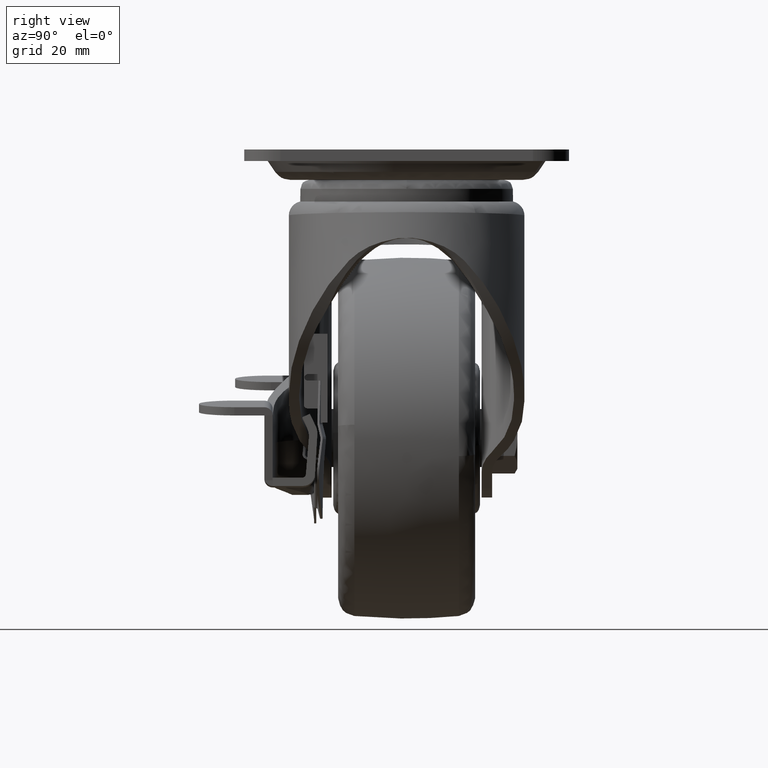
[diagram: clean part render]
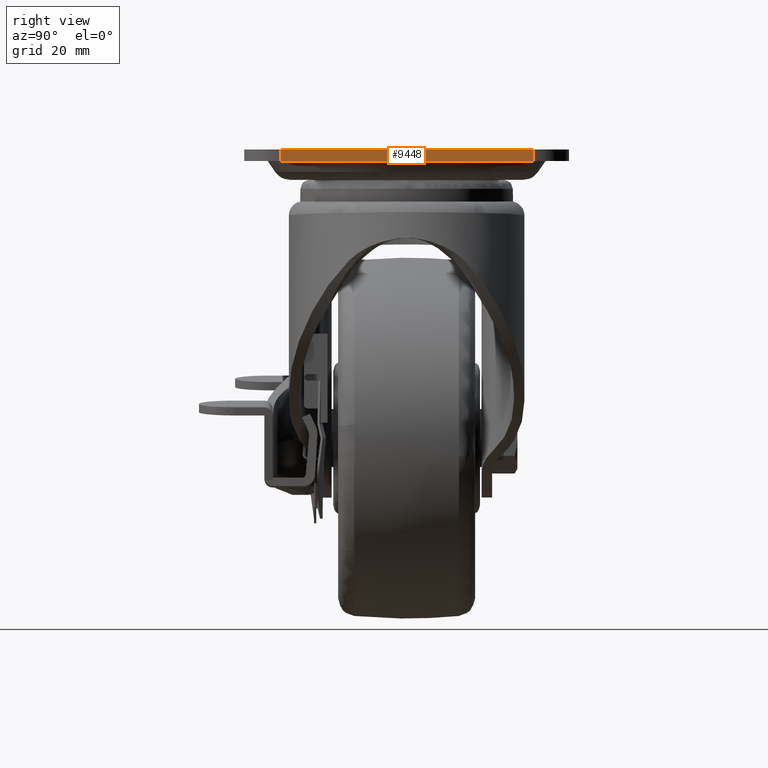
[diagram: same view with one face highlighted and labeled with its STEP entity id]
A machine part, right view. The second image highlights one B-rep face of the part: STEP entity #9448.
In plain terms, the highlighted face is a freeform B-spline surface patch.
Its self-contained STEP definition (entity closure, byte-faithful):
#9270=CARTESIAN_POINT('',(45.0,35.0,-3.200000000000000));
#9271=VERTEX_POINT('',#9270);
#9285=CARTESIAN_POINT('',(45.0,-35.0,-3.200000000000000));
#9286=VERTEX_POINT('',#9285);
#9287=CARTESIAN_POINT('',(45.0,-35.0,-3.200000000000000));
#9288=CARTESIAN_POINT('',(45.0,35.0,-3.200000000000000));
#9289=QUASI_UNIFORM_CURVE('',1,(#9287,#9288),.UNSPECIFIED.,.F.,.U.);
#9290=EDGE_CURVE('',#9286,#9271,#9289,.T.);
#9396=CARTESIAN_POINT('',(45.0,35.0,0.0));
#9397=VERTEX_POINT('',#9396);
#9413=CARTESIAN_POINT('',(45.0,35.0,-3.200000000000000));
#9414=CARTESIAN_POINT('',(45.0,35.0,0.0));
#9415=QUASI_UNIFORM_CURVE('',1,(#9413,#9414),.UNSPECIFIED.,.F.,.U.);
#9416=EDGE_CURVE('',#9271,#9397,#9415,.T.);
#9427=CARTESIAN_POINT('',(45.0,-38.496499864326417,-3.359839993797780));
#9428=CARTESIAN_POINT('',(45.0,38.496501741872727,-3.359839993797780));
#9429=CARTESIAN_POINT('',(45.0,-38.496499864326417,0.159840079628467));
#9430=CARTESIAN_POINT('',(45.0,38.496501741872727,0.159840079628467));
#9431=B_SPLINE_SURFACE_WITH_KNOTS('',1,1,((#9427,#9429),(#9428,#9430)),.UNSPECIFIED.,.F.,.F.,.U.,(2,2),(2,2),(0.0,76.993001606199158),(0.0,3.519680073426247),.UNSPECIFIED.);
#9432=CARTESIAN_POINT('',(45.0,-35.0,0.0));
#9433=VERTEX_POINT('',#9432);
#9434=CARTESIAN_POINT('',(45.0,-35.0,0.0));
#9435=CARTESIAN_POINT('',(45.0,35.0,0.0));
#9436=QUASI_UNIFORM_CURVE('',1,(#9434,#9435),.UNSPECIFIED.,.F.,.U.);
#9437=EDGE_CURVE('',#9433,#9397,#9436,.T.);
#9438=ORIENTED_EDGE('',*,*,#9437,.F.);
#9439=CARTESIAN_POINT('',(45.0,-35.0,-3.200000000000000));
#9440=CARTESIAN_POINT('',(45.0,-35.0,0.0));
#9441=QUASI_UNIFORM_CURVE('',1,(#9439,#9440),.UNSPECIFIED.,.F.,.U.);
#9442=EDGE_CURVE('',#9286,#9433,#9441,.T.);
#9443=ORIENTED_EDGE('',*,*,#9442,.F.);
#9444=ORIENTED_EDGE('',*,*,#9290,.T.);
#9445=ORIENTED_EDGE('',*,*,#9416,.T.);
#9446=EDGE_LOOP('',(#9438,#9443,#9444,#9445));
#9447=FACE_OUTER_BOUND('',#9446,.T.);
#9448=ADVANCED_FACE('',(#9447),#9431,.T.);